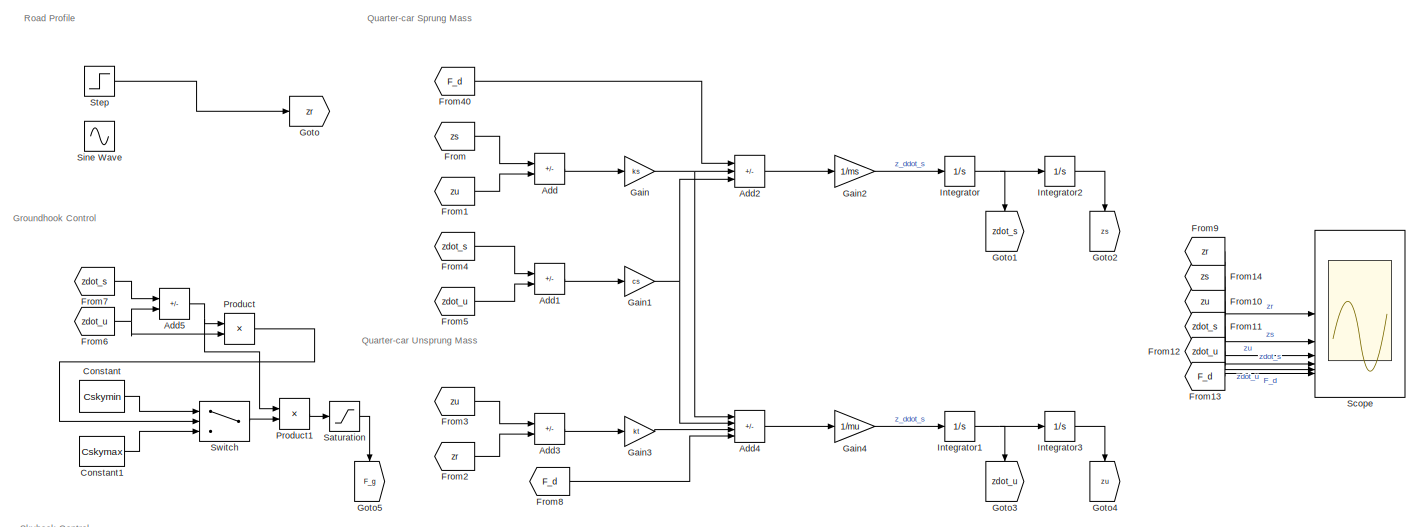
[diagram: root canvas - part 1/2, full width, top band]
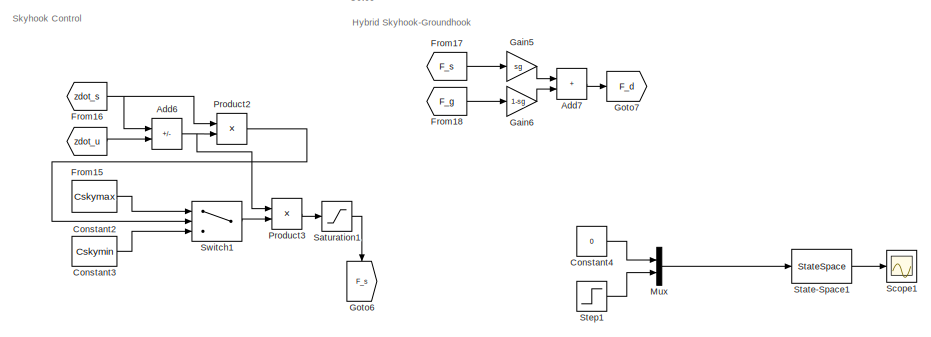
[diagram: root canvas - part 2/2, bottom center region]
MODEL slx_42a6e6d0b331
KIND model
CONFIG AbsTol = auto
CONFIG EnableMultiTasking = off
CONFIG FixedStep = auto
CONFIG MaxStep = auto
CONFIG MinStep = auto
CONFIG RelTol = 1e-3
CONFIG SampleTimeConstraint = Unconstrained
CONFIG SolverName = VariableStepAuto
CONFIG StartTime = 0.0
CONFIG StopTime = 10
BLOCK [Sum] Add
  IconShape = rectangular
  Inputs = +-
BLOCK [Sum] Add1
  IconShape = rectangular
  Inputs = +-
BLOCK [Sum] Add2
  IconShape = rectangular
  Inputs = ---
BLOCK [Sum] Add3
  IconShape = rectangular
  Inputs = +-
BLOCK [Sum] Add4
  IconShape = rectangular
  Inputs = ++-+
BLOCK [Sum] Add5
  IconShape = rectangular
  Inputs = +-
BLOCK [Sum] Add6
  IconShape = rectangular
  Inputs = +-
BLOCK [Sum] Add7
  IconShape = rectangular
BLOCK [Constant] Constant
  Value = Cskymin
BLOCK [Constant] Constant1
  Value = Cskymax
BLOCK [Constant] Constant2
  Value = Cskymax
BLOCK [Constant] Constant3
  Value = Cskymin
BLOCK [Constant] Constant4
  Value = 0
BLOCK [From] From
  GotoTag = zs
BLOCK [From] From1
  GotoTag = zu
BLOCK [From] From10
  GotoTag = zu
BLOCK [From] From11
  GotoTag = zdot_s
BLOCK [From] From12
  GotoTag = zdot_u
BLOCK [From] From13
  GotoTag = F_d
BLOCK [From] From14
  GotoTag = zs
BLOCK [From] From15
  GotoTag = zdot_u
BLOCK [From] From16
  GotoTag = zdot_s
BLOCK [From] From17
  GotoTag = F_s
BLOCK [From] From18
  GotoTag = F_g
BLOCK [From] From2
  GotoTag = zr
BLOCK [From] From3
  GotoTag = zu
BLOCK [From] From4
  GotoTag = zdot_s
BLOCK [From] From40
  GotoTag = F_d
BLOCK [From] From5
  GotoTag = zdot_u
BLOCK [From] From6
  GotoTag = zdot_u
BLOCK [From] From7
  GotoTag = zdot_s
BLOCK [From] From8
  GotoTag = F_d
BLOCK [From] From9
  GotoTag = zr
BLOCK [Gain] Gain
  Gain = ks
BLOCK [Gain] Gain1
  Gain = cs
BLOCK [Gain] Gain2
  Gain = 1/ms
BLOCK [Gain] Gain3
  Gain = kt
BLOCK [Gain] Gain4
  Gain = 1/mu
BLOCK [Gain] Gain5
  Gain = sg
BLOCK [Gain] Gain6
  Gain = 1-sg
BLOCK [Goto] Goto
  GotoTag = zr
BLOCK [Goto] Goto1
  GotoTag = zdot_s
  NameLocation = left
BLOCK [Goto] Goto2
  GotoTag = zs
  NameLocation = left
BLOCK [Goto] Goto3
  GotoTag = zdot_u
  NameLocation = left
BLOCK [Goto] Goto4
  GotoTag = zu
  NameLocation = left
BLOCK [Goto] Goto5
  GotoTag = F_g
  NameLocation = left
BLOCK [Goto] Goto6
  GotoTag = F_s
  NameLocation = left
BLOCK [Goto] Goto7
  GotoTag = F_d
BLOCK [Integrator] Integrator
BLOCK [Integrator] Integrator1
BLOCK [Integrator] Integrator2
BLOCK [Integrator] Integrator3
BLOCK [Mux] Mux
  DisplayOption = bar
  Inputs = 2
BLOCK [Product] Product
BLOCK [Product] Product1
BLOCK [Product] Product2
BLOCK [Product] Product3
BLOCK [Saturate] Saturation
  Commented = through
  LowerLimit = -200
  UpperLimit = 2000
BLOCK [Saturate] Saturation1
  Commented = through
  LowerLimit = -200
  UpperLimit = 2000
BLOCK [Scope] Scope
  ActiveDisplayString = 6
  ActiveDisplayYMaximum = 3003.5239530595863
  ActiveDisplayYMinimum = -5403.3789910212317
  Floating = off
  GraphicalSettings = {"Style":{"BackgroundColor":[0.12941176470588237,0.12941176470588237,0.12941176470588237],"AxesColor":[0.07058823529411765,0.07058823529411765,0.07058823529411765],"LabelsColor":[0.8509803921568627,0.8509803921568627,0.8509803921568627],"PreserveColors":false,"Visible":[true,true,true,true,true,true],"LineStyle":["-","-","-","-","-","-"],"LineWidth":[1.5,1.5,1.5,1.5,1.5,1.5],"BarWidth":[0.9,0.9,0....<+4125ch>
  LayoutDimensionsString = [2,3]
  MultipleDisplayCache = [{"MaxYLimMag":0.1125,"MaxYLimReal":0.1125,"MinYLimMag":0,"MinYLimReal":-0.012499999999999997,"PlotAsMagnitudePhase":false,"ShowGrid":true,"ShowLegend":true,"Title":"%<SignalLabel>","YLabel":""},{"MaxYLimMag":0.15583841273872376,"MaxYLimReal":0.15583841273872376,"MinYLimMag":0,"MinYLimReal":-0.017315379193191524,"PlotAsMagnitudePhase":false,"ShowGrid":true,"ShowLegend":true,"Title":"%<SignalLabel>...<+884ch>
  NumInputPorts = 6
  ScopeFrameLocation = window
  ShowLegend = on
  WasSavedAsWebScope = on
  WindowPosition = [1.000000,1.000000,1440.000000,847.000000,]
BLOCK [Scope] Scope1
  ActiveDisplayYMaximum = 8.6440362489572991
  ActiveDisplayYMinimum = -3.7197551677443137
  DataLoggingVariableName = ScopeData1
  Floating = off
  GraphicalSettings = {"Style":{"BackgroundColor":[0.12941176470588237,0.12941176470588237,0.12941176470588237],"AxesColor":[0.07058823529411765,0.07058823529411765,0.07058823529411765],"LabelsColor":[0.8509803921568627,0.8509803921568627,0.8509803921568627],"PreserveColors":false,"Visible":[true,true,true],"LineStyle":["-","-","-"],"LineWidth":[1.5,1.5,1.5],"BarWidth":[0.9,0.9,0.9],"LineColor":["auto","auto","auto"],"...<+2304ch>
  LayoutDimensionsString = [1,1]
  MultipleDisplayCache = [{"MaxYLimMag":8.6440362489572991,"MaxYLimReal":8.6440362489572991,"MinYLimMag":0,"MinYLimReal":-3.7197551677443137,"PlotAsMagnitudePhase":false,"ShowGrid":true,"ShowLegend":true,"Title":"%<SignalLabel>","YLabel":""}]
  NumInputPorts = 1
  ScopeFrameLocation = window
  ShowLegend = on
  Visible = on
  WasSavedAsWebScope = on
  WindowPosition = [1.000000,1.000000,1440.000000,900.000000,]
BLOCK [Sin] Sine Wave
  Amplitude = 0.02
  Frequency = 10
  SampleTime = 0
BLOCK [StateSpace] State-Space1
  A = A
  B = B
  C = C
  D = D
  InitialCondition = 0
BLOCK [Step] Step
  After = 0.1
  SampleTime = 0
BLOCK [Step] Step1
  SampleTime = 0
BLOCK [Switch] Switch
  Criteria = u2 > Threshold
  InputSameDT = off
  SaturateOnIntegerOverflow = off
  ZeroCross = off
BLOCK [Switch] Switch1
  Criteria = u2 > Threshold
  InputSameDT = off
  SaturateOnIntegerOverflow = off
ANNOTATION (root): Groundhook Control
ANNOTATION (root): Hybrid Skyhook-Groundhook
ANNOTATION (root): Quarter-car Sprung Mass
ANNOTATION (root): Quarter-car Unsprung Mass
ANNOTATION (root): Road Profile
ANNOTATION (root): Skyhook Control
LINE Add1:1 -> Gain1:1
LINE Add2:1 -> Gain2:1
LINE Add3:1 -> Gain3:1
LINE Add4:1 -> Gain4:1
NET Add5:1 -> Product1:1, Product:1
NET Add6:1 -> Product2:2, Product3:1
LINE Add7:1 -> Goto7:1
LINE Add:1 -> Gain:1
LINE Constant1:1 -> Switch:3
LINE Constant2:1 -> Switch1:1
LINE Constant3:1 -> Switch1:3
LINE Constant4:1 -> Mux:1
LINE Constant:1 -> Switch:1
LINE From10:1 -> Scope:3
LINE From11:1 -> Scope:4
LINE From12:1 -> Scope:5
LINE From13:1 -> Scope:6
LINE From14:1 -> Scope:2
LINE From15:1 -> Add6:2
NET From16:1 -> Add6:1, Product2:1
LINE From17:1 -> Gain5:1
LINE From18:1 -> Gain6:1
LINE From1:1 -> Add:2
LINE From2:1 -> Add3:2
LINE From3:1 -> Add3:1
LINE From40:1 -> Add2:1
LINE From4:1 -> Add1:1
LINE From5:1 -> Add1:2
NET From6:1 -> Add5:2, Product:2
LINE From7:1 -> Add5:1
LINE From8:1 -> Add4:4
LINE From9:1 -> Scope:1
LINE From:1 -> Add:1
NET Gain1:1 -> Add2:3, Add4:2
LINE Gain2:1 -> Integrator:1
LINE Gain3:1 -> Add4:3
LINE Gain4:1 -> Integrator1:1
LINE Gain5:1 -> Add7:1
LINE Gain6:1 -> Add7:2
NET Gain:1 -> Add2:2, Add4:1
NET Integrator1:1 -> Goto3:1, Integrator3:1
LINE Integrator2:1 -> Goto2:1
LINE Integrator3:1 -> Goto4:1
NET Integrator:1 -> Goto1:1, Integrator2:1
LINE Mux:1 -> State-Space1:1
LINE Product1:1 -> Saturation:1
LINE Product2:1 -> Switch1:2
LINE Product3:1 -> Saturation1:1
LINE Product:1 -> Switch:2
LINE Saturation1:1 -> Goto6:1
LINE Saturation:1 -> Goto5:1
LINE State-Space1:1 -> Scope1:1
LINE Step1:1 -> Mux:2
LINE Step:1 -> Goto:1
LINE Switch1:1 -> Product3:2
LINE Switch:1 -> Product1:2
note: NET lines group one-source signal fan-out (src -> all destinations, sorted); 1:1 wires keep LINE
